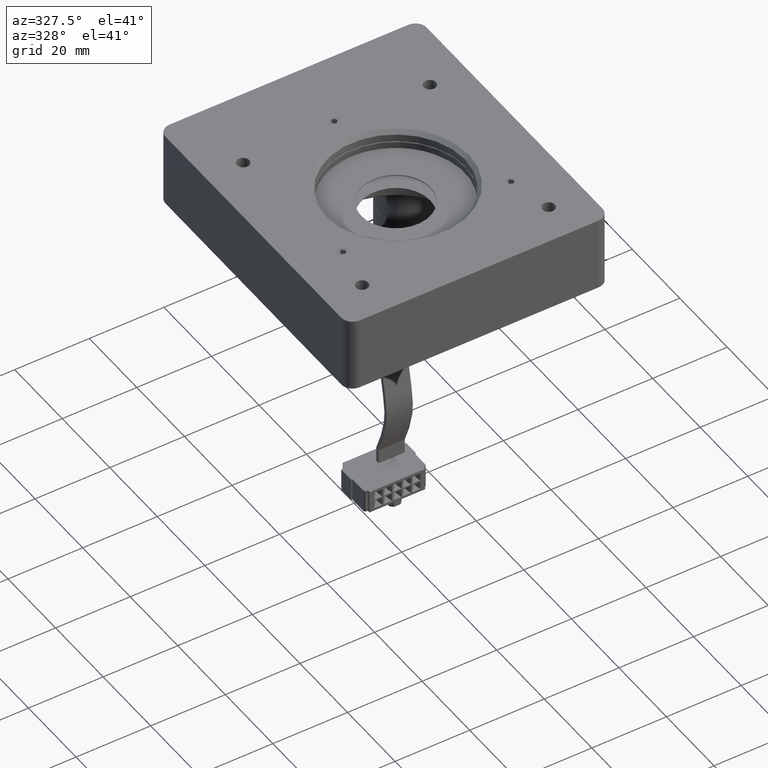
[diagram: clean part render]
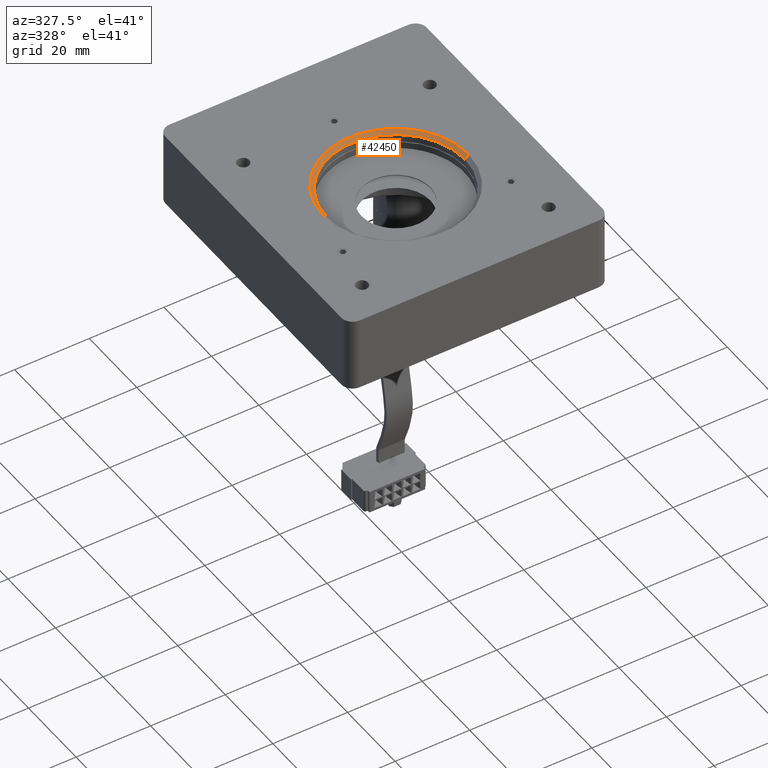
[diagram: same view with one face highlighted and labeled with its STEP entity id]
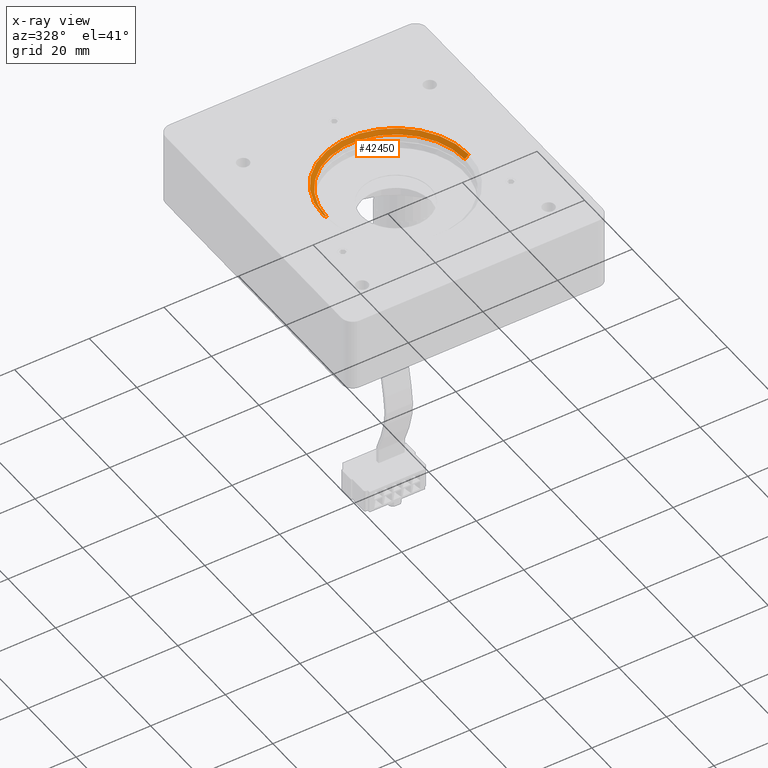
[diagram: x-ray of the same camera — body ghosted, the highlighted face saturated]
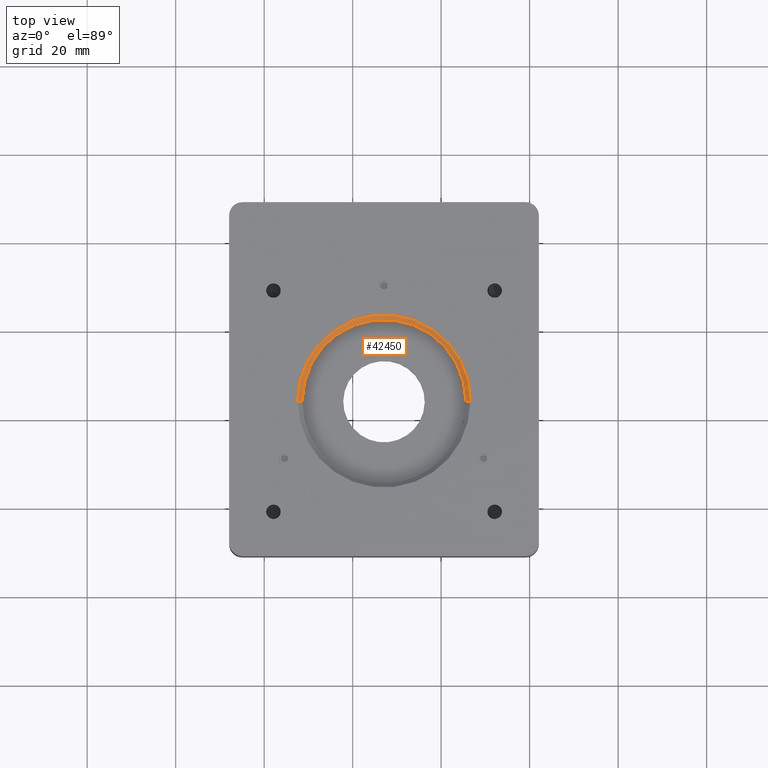
[diagram: same view with one face highlighted and labeled with its STEP entity id]
A machine part, auxiliary view. The second image highlights one B-rep face of the part: STEP entity #42450.
The next image is the same camera in x-ray: the body ghosted, the highlighted face saturated — about 0% of this face is hidden behind the body in this view.
A second angle (top view) of the same face is appended — the face is thin or edge-on in the first view.
In plain terms, the highlighted conical surface has half-angle 45 deg.
Its self-contained STEP definition (entity closure, byte-faithful):
#4503 = DIRECTION ( 'NONE',  ( -0.0000000000000000000, -0.0000000000000000000, 1.000000000000000000 ) ) ;
#7563 = CARTESIAN_POINT ( 'NONE',  ( -31.41903274966292900, 2.163028059219103600, 16.00000000002638200 ) ) ;
#8275 = AXIS2_PLACEMENT_3D ( 'NONE', #48221, #13088, #36671 ) ;
#9302 = AXIS2_PLACEMENT_3D ( 'NONE', #23959, #4503, #31823 ) ;
#9863 = CIRCLE ( 'NONE', #9302, 18.50000000000000000 ) ;
#12987 = DIRECTION ( 'NONE',  ( 1.000000000000000000, 0.0000000000000000000, 0.0000000000000000000 ) ) ;
#13088 = DIRECTION ( 'NONE',  ( -0.0000000000000000000, -0.0000000000000000000, 1.000000000000000000 ) ) ;
#13232 = FACE_OUTER_BOUND ( 'NONE', #24979, .T. ) ;
#14237 = CARTESIAN_POINT ( 'NONE',  ( -32.41903274966293200, 2.163028059219106200, 17.00000000002637500 ) ) ;
#14880 = CARTESIAN_POINT ( 'NONE',  ( 6.580967250337063300, 2.163028059219103600, 17.00000000002637500 ) ) ;
#16456 = AXIS2_PLACEMENT_3D ( 'NONE', #16904, #24742, #12987 ) ;
#16904 = CARTESIAN_POINT ( 'NONE',  ( -12.91903274966293200, 2.163028059219103600, 17.00000000002637500 ) ) ;
#17368 = EDGE_CURVE ( 'NONE', #48982, #45624, #47451, .T. ) ;
#19824 = VERTEX_POINT ( 'NONE', #39629 ) ;
#20499 = DIRECTION ( 'NONE',  ( -0.7071067811865489100, 8.659560562354950100E-017, 0.7071067811865462400 ) ) ;
#21039 = ORIENTED_EDGE ( 'NONE', *, *, #28820, .F. ) ;
#22947 = ORIENTED_EDGE ( 'NONE', *, *, #17368, .F. ) ;
#23959 = CARTESIAN_POINT ( 'NONE',  ( -12.91903274966293200, 2.163028059219103600, 16.00000000002638200 ) ) ;
#24742 = DIRECTION ( 'NONE',  ( 0.0000000000000000000, -0.0000000000000000000, -1.000000000000000000 ) ) ;
#24979 = EDGE_LOOP ( 'NONE', ( #22947, #21039, #27675, #47127 ) ) ;
#27207 = EDGE_CURVE ( 'NONE', #45624, #19824, #37587, .T. ) ;
#27675 = ORIENTED_EDGE ( 'NONE', *, *, #32499, .T. ) ;
#28820 = EDGE_CURVE ( 'NONE', #44031, #48982, #9863, .T. ) ;
#30599 = LINE ( 'NONE', #14880, #46441 ) ;
#30669 = CARTESIAN_POINT ( 'NONE',  ( 5.580967250337066000, 2.163028059219105800, 16.00000000002638200 ) ) ;
#31823 = DIRECTION ( 'NONE',  ( 1.000000000000000000, 0.0000000000000000000, 0.0000000000000000000 ) ) ;
#32499 = EDGE_CURVE ( 'NONE', #44031, #19824, #30599, .T. ) ;
#34664 = VECTOR ( 'NONE', #20499, 999.9999999999998900 ) ;
#36671 = DIRECTION ( 'NONE',  ( 1.000000000000000000, 0.0000000000000000000, 0.0000000000000000000 ) ) ;
#37587 = CIRCLE ( 'NONE', #16456, 19.49999999999999600 ) ;
#39629 = CARTESIAN_POINT ( 'NONE',  ( 6.580967250337063300, 2.163028059219103600, 17.00000000002637500 ) ) ;
#42450 = ADVANCED_FACE ( 'NONE', ( #13232 ), #44384, .F. ) ;
#42513 = DIRECTION ( 'NONE',  ( 0.7071067811865489100, 0.0000000000000000000, 0.7071067811865462400 ) ) ;
#43571 = CARTESIAN_POINT ( 'NONE',  ( -32.41903274966293200, 2.163028059219106200, 17.00000000002637500 ) ) ;
#44031 = VERTEX_POINT ( 'NONE', #30669 ) ;
#44384 = CONICAL_SURFACE ( 'NONE', #8275, 19.49999999999999600, 0.7853981633974501700 ) ;
#45624 = VERTEX_POINT ( 'NONE', #14237 ) ;
#46441 = VECTOR ( 'NONE', #42513, 999.9999999999998900 ) ;
#47127 = ORIENTED_EDGE ( 'NONE', *, *, #27207, .F. ) ;
#47451 = LINE ( 'NONE', #43571, #34664 ) ;
#48221 = CARTESIAN_POINT ( 'NONE',  ( -12.91903274966293200, 2.163028059219103600, 17.00000000002637500 ) ) ;
#48982 = VERTEX_POINT ( 'NONE', #7563 ) ;